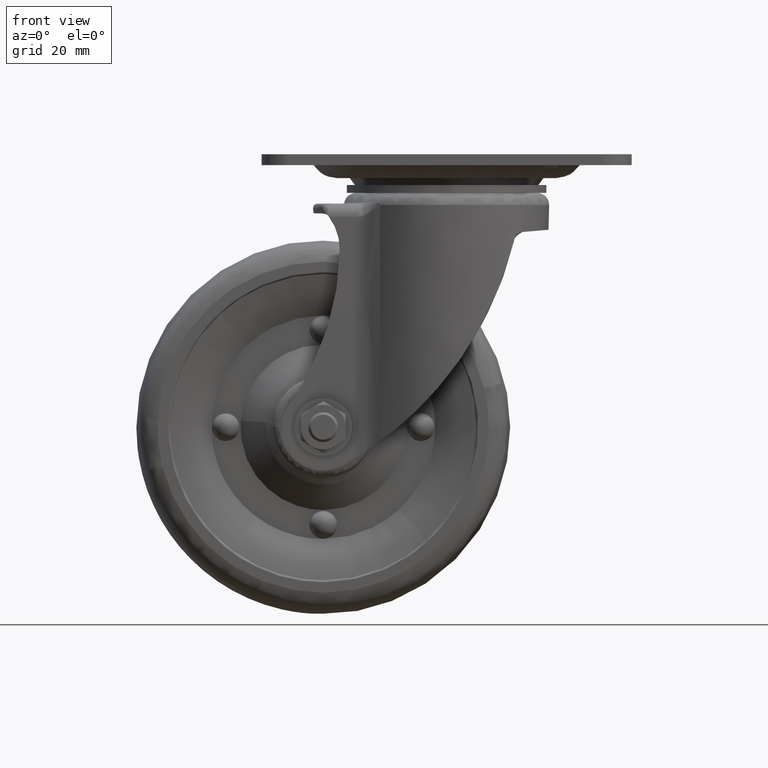
[diagram: clean part render]
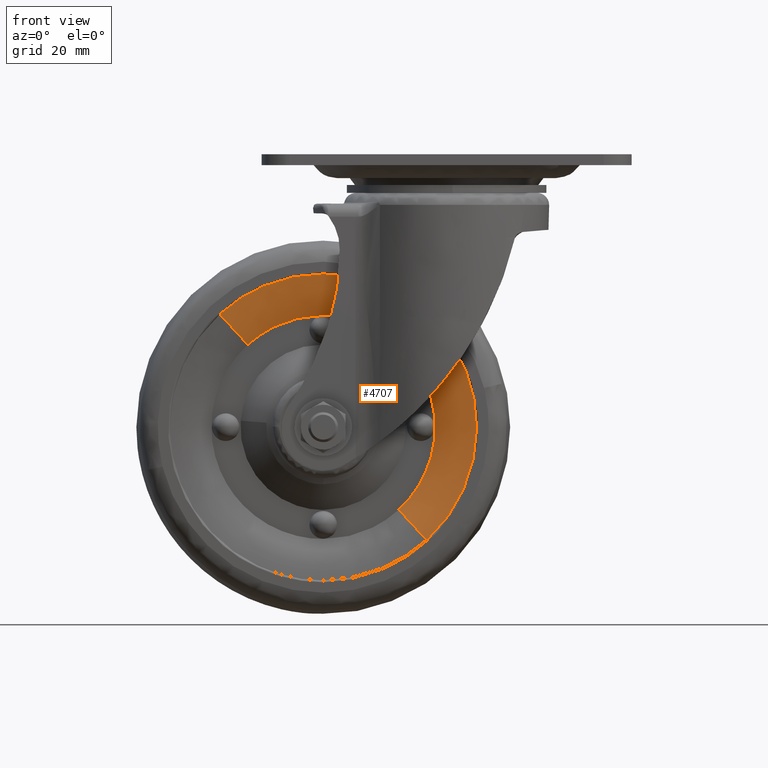
[diagram: same view with one face highlighted and labeled with its STEP entity id]
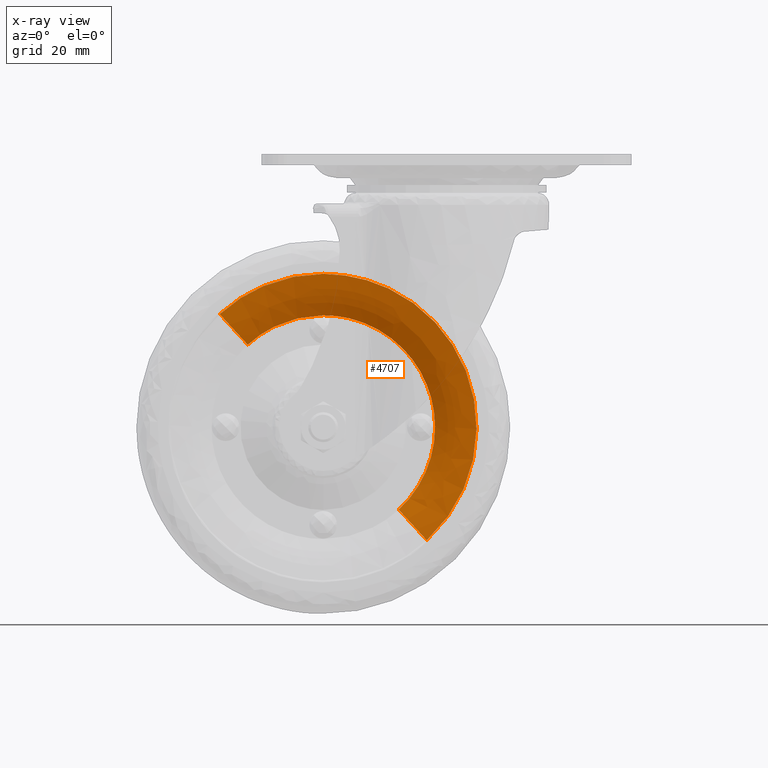
[diagram: x-ray of the same camera — body ghosted, the highlighted face saturated]
A machine part, front view. The second image highlights one B-rep face of the part: STEP entity #4707.
The next image is the same camera in x-ray: the body ghosted, the highlighted face saturated — about 0% of this face is hidden behind the body in this view.
In plain terms, the highlighted face is a freeform B-spline surface patch.
Its self-contained STEP definition (entity closure, byte-faithful):
#4434=CARTESIAN_POINT('',(-15.542724769058260,-10.500000501923990,-35.901858243278220));
#4435=VERTEX_POINT('',#4434);
#4436=CARTESIAN_POINT('',(-32.999588012695313,-10.500000502495221,-31.999787000010741));
#4437=VERTEX_POINT('',#4436);
#4438=CARTESIAN_POINT('',(-15.542724769058257,-10.500000501923985,-35.901858243278213));
#4439=CARTESIAN_POINT('',(-23.835048260365859,-10.500000502209604,-31.999787000010745));
#4440=CARTESIAN_POINT('',(-32.999588012695313,-10.500000502495221,-31.999787000010741));
#4448=(BOUNDED_CURVE()B_SPLINE_CURVE(2,(#4438,#4439,#4440),.UNSPECIFIED.,.F.,.U.)B_SPLINE_CURVE_WITH_KNOTS((3,3),(0.427668464636462,0.500000000000000),.UNSPECIFIED.)CURVE()GEOMETRIC_REPRESENTATION_ITEM()RATIONAL_B_SPLINE_CURVE((0.879552628112409,0.915258335142617,1.0))REPRESENTATION_ITEM(''));
#4449=EDGE_CURVE('',#4435,#4437,#4448,.T.);
#4485=CARTESIAN_POINT('',(-60.688086890518051,-10.499998997828991,-42.761702178677531));
#4486=VERTEX_POINT('',#4485);
#4502=CARTESIAN_POINT('',(-32.999588012695313,-10.500000502495221,-31.999787000010741));
#4503=CARTESIAN_POINT('',(-48.935294834397332,-10.499999750196334,-31.999790698035795));
#4504=CARTESIAN_POINT('',(-60.688086890518051,-10.499998997828994,-42.761702178677531));
#4512=(BOUNDED_CURVE()B_SPLINE_CURVE(2,(#4502,#4503,#4504),.UNSPECIFIED.,.F.,.U.)B_SPLINE_CURVE_WITH_KNOTS((3,3),(0.500000000000000,0.618362512018723),.UNSPECIFIED.)CURVE()GEOMETRIC_REPRESENTATION_ITEM()RATIONAL_B_SPLINE_CURVE((1.0,0.861329691471962,0.853966311422242))REPRESENTATION_ITEM(''));
#4513=EDGE_CURVE('',#4437,#4486,#4512,.T.);
#4563=CARTESIAN_POINT('',(-5.311089134872592,-10.499998997829000,-103.237459821344300));
#4564=VERTEX_POINT('',#4563);
#4595=CARTESIAN_POINT('',(-5.311089134872592,-10.499998997829003,-103.237459821344340));
#4596=CARTESIAN_POINT('',(8.000200214257795,-10.499999219754134,-91.048458016446389));
#4597=CARTESIAN_POINT('',(8.000201988611316,-10.499999613811781,-72.999576633143235));
#4598=CARTESIAN_POINT('',(8.000204546518404,-10.500000181885062,-46.980318958833521));
#4599=CARTESIAN_POINT('',(-15.542724769058257,-10.500000501923985,-35.901858243278213));
#4607=(BOUNDED_CURVE()B_SPLINE_CURVE(2,(#4595,#4596,#4597,#4598,#4599),.UNSPECIFIED.,.F.,.U.)B_SPLINE_CURVE_WITH_KNOTS((3,2,3),(0.118362512018723,0.250000000000000,0.427668464636462),.UNSPECIFIED.)CURVE()GEOMETRIC_REPRESENTATION_ITEM()RATIONAL_B_SPLINE_CURVE((0.853966311422242,0.845777089714586,1.0,0.791848446043930,0.879552628112409))REPRESENTATION_ITEM(''));
#4608=EDGE_CURVE('',#4564,#4435,#4607,.T.);
#4613=CARTESIAN_POINT('',(-5.770697345985306,-10.581583422347366,-104.457191258535390));
#4614=CARTESIAN_POINT('',(-5.344443894638488,-10.581583422347364,-104.066875569913490));
#4615=CARTESIAN_POINT('',(25.759209475250092,-10.581583422347364,-75.585595605222963));
#4616=CARTESIAN_POINT('',(-2.327181966116594,-10.581583422347363,-44.913189558644248));
#4617=CARTESIAN_POINT('',(-30.413573407483298,-10.581583422347364,-14.240783512065542));
#4618=CARTESIAN_POINT('',(-61.517226594870642,-10.581583422347368,-42.722063309641648));
#4619=CARTESIAN_POINT('',(-61.943479867930741,-10.581583422347368,-43.112378835008307));
#4620=CARTESIAN_POINT('',(-10.155925469505547,-9.731324561018456,-99.390925471472812));
#4621=CARTESIAN_POINT('',(-9.798320375723991,-9.731324561018456,-99.063470343560013));
#4622=CARTESIAN_POINT('',(16.296072162667748,-9.731324561018457,-75.169116501706853));
#4623=CARTESIAN_POINT('',(-7.266990174165834,-9.731324561018456,-49.436518663177360));
#4624=CARTESIAN_POINT('',(-30.830052510999408,-9.731324561018457,-23.703920824647895));
#4625=CARTESIAN_POINT('',(-56.924444896281841,-9.731324561018456,-47.598274526300514));
#4626=CARTESIAN_POINT('',(-57.282049840489847,-9.731324561018456,-47.925729517250424));
#4627=CARTESIAN_POINT('',(-13.728543469580590,-5.755278955219271,-95.263470334773004));
#4628=CARTESIAN_POINT('',(-13.426865764524337,-5.755278955219270,-94.987227313587255));
#4629=CARTESIAN_POINT('',(8.586513218907712,-5.755278955219271,-74.829813573793871));
#4630=CARTESIAN_POINT('',(-11.291421110002348,-5.755278955219270,-53.121646671100891));
#4631=CARTESIAN_POINT('',(-31.169355438912408,-5.755278955219271,-31.413479768407935));
#4632=CARTESIAN_POINT('',(-53.182734293180559,-5.755278955219269,-51.570893389927328));
#4633=CARTESIAN_POINT('',(-53.484411872055723,-5.755278955219271,-51.847136295570422));
#4641=(BOUNDED_SURFACE()B_SPLINE_SURFACE(2,2,((#4613,#4620,#4627),(#4614,#4621,#4628),(#4615,#4622,#4629),(#4616,#4623,#4630),(#4617,#4624,#4631),(#4618,#4625,#4632),(#4619,#4626,#4633)),.UNSPECIFIED.,.F.,.F.,.U.)B_SPLINE_SURFACE_WITH_KNOTS((3,1,2,1,3),(3,3),(0.0,1.378137607468863,70.284988352672727,139.191839097876600,140.569976118709600),(0.0,13.291669703206420),.UNSPECIFIED.)GEOMETRIC_REPRESENTATION_ITEM()RATIONAL_B_SPLINE_SURFACE(((0.956055450485472,0.926043484668101,0.956294984381925),(0.950519858435115,0.920681662872712,0.950758005422543),(0.668204782875258,0.647228866580368,0.668372197532211),(0.944984266384759,0.915319841077323,0.945221026463162),(0.668204782875258,0.647228866580368,0.668372197532211),(0.950519856078764,0.920681660590330,0.950758003065601),(0.956055445772769,0.926043480103336,0.956294979668041)))REPRESENTATION_ITEM('')SURFACE());
#4642=ORIENTED_EDGE('',*,*,#4608,.T.);
#4643=ORIENTED_EDGE('',*,*,#4449,.T.);
#4644=ORIENTED_EDGE('',*,*,#4513,.T.);
#4645=CARTESIAN_POINT('',(-53.204744205511538,-6.100000502716424,-50.934063745050963));
#4646=VERTEX_POINT('',#4645);
#4647=CARTESIAN_POINT('',(-60.688086890518044,-10.499998997828994,-42.761702178677531));
#4648=CARTESIAN_POINT('',(-56.600014683204265,-9.591773327651016,-47.226178194362689));
#4649=CARTESIAN_POINT('',(-53.204744205511545,-6.100000502716424,-50.934063745050963));
#4657=(BOUNDED_CURVE()B_SPLINE_CURVE(2,(#4647,#4648,#4649),.UNSPECIFIED.,.F.,.U.)B_SPLINE_CURVE_WITH_KNOTS((3,3),(-1.418135961445812,-0.578191165239554),.UNSPECIFIED.)CURVE()GEOMETRIC_REPRESENTATION_ITEM()RATIONAL_B_SPLINE_CURVE((0.942412754007066,0.917902083789291,0.942628053801553))REPRESENTATION_ITEM(''));
#4658=EDGE_CURVE('',#4486,#4646,#4657,.T.);
#4659=ORIENTED_EDGE('',*,*,#4658,.T.);
#4660=CARTESIAN_POINT('',(-32.999588012695313,-6.100000502495201,-43.080767713284843));
#4661=VERTEX_POINT('',#4660);
#4662=CARTESIAN_POINT('',(-32.999588012695313,-6.100000502495201,-43.080767713284843));
#4663=CARTESIAN_POINT('',(-44.628367094098216,-6.100000502605812,-43.080767713167404));
#4664=CARTESIAN_POINT('',(-53.204744205511545,-6.100000502716424,-50.934063745050963));
#4672=(BOUNDED_CURVE()B_SPLINE_CURVE(2,(#4662,#4663,#4664),.UNSPECIFIED.,.F.,.U.)B_SPLINE_CURVE_WITH_KNOTS((3,3),(0.500000000000000,0.618362513836655),.UNSPECIFIED.)CURVE()GEOMETRIC_REPRESENTATION_ITEM()RATIONAL_B_SPLINE_CURVE((1.0,0.861329689342121,0.853966311196054))REPRESENTATION_ITEM(''));
#4673=EDGE_CURVE('',#4661,#4646,#4672,.T.);
#4674=ORIENTED_EDGE('',*,*,#4673,.F.);
#4675=CARTESIAN_POINT('',(-12.794431819879110,-6.100000502716419,-95.065098254970962));
#4676=VERTEX_POINT('',#4675);
#4677=CARTESIAN_POINT('',(-12.794431819879112,-6.100000502716419,-95.065098254970962));
#4678=CARTESIAN_POINT('',(-3.080774725772526,-6.100000502697494,-86.170407207264915));
#4679=CARTESIAN_POINT('',(-3.080774725819868,-6.100000502648801,-72.999581000174061));
#4680=CARTESIAN_POINT('',(-3.080774725927412,-6.100000502538192,-43.080767713330488));
#4681=CARTESIAN_POINT('',(-32.999588012695313,-6.100000502495201,-43.080767713284843));
#4689=(BOUNDED_CURVE()B_SPLINE_CURVE(2,(#4677,#4678,#4679,#4680,#4681),.UNSPECIFIED.,.F.,.U.)B_SPLINE_CURVE_WITH_KNOTS((3,2,3),(0.118362513836655,0.250000000000000,0.500000000000000),.UNSPECIFIED.)CURVE()GEOMETRIC_REPRESENTATION_ITEM()RATIONAL_B_SPLINE_CURVE((0.853966311196054,0.845777091844426,1.0,0.707106781186547,1.0))REPRESENTATION_ITEM(''));
#4690=EDGE_CURVE('',#4676,#4661,#4689,.T.);
#4691=ORIENTED_EDGE('',*,*,#4690,.F.);
#4692=CARTESIAN_POINT('',(-5.311089134872592,-10.499998997829003,-103.237459821344340));
#4693=CARTESIAN_POINT('',(-9.399161342186369,-9.591773327651014,-98.772983805659209));
#4694=CARTESIAN_POINT('',(-12.794431819879104,-6.100000502716419,-95.065098254970962));
#4702=(BOUNDED_CURVE()B_SPLINE_CURVE(2,(#4692,#4693,#4694),.UNSPECIFIED.,.F.,.U.)B_SPLINE_CURVE_WITH_KNOTS((3,3),(-1.418135961445810,-0.578191165239554),.UNSPECIFIED.)CURVE()GEOMETRIC_REPRESENTATION_ITEM()RATIONAL_B_SPLINE_CURVE((0.942412754007066,0.917902083789291,0.942628053801553))REPRESENTATION_ITEM(''));
#4703=EDGE_CURVE('',#4564,#4676,#4702,.T.);
#4704=ORIENTED_EDGE('',*,*,#4703,.F.);
#4705=EDGE_LOOP('',(#4642,#4643,#4644,#4659,#4674,#4691,#4704));
#4706=FACE_OUTER_BOUND('',#4705,.T.);
#4707=ADVANCED_FACE('',(#4706),#4641,.T.);